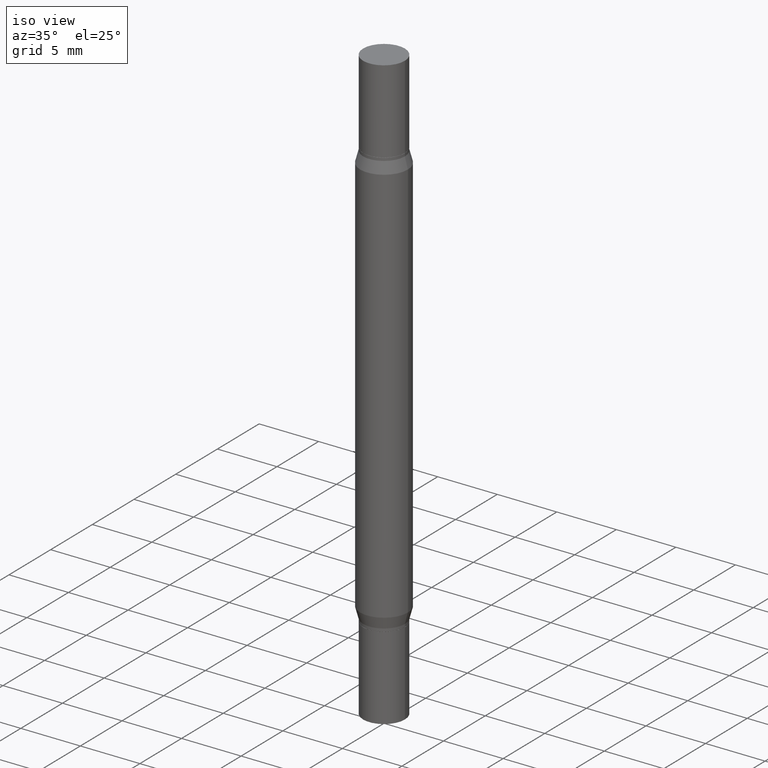
[diagram: clean part render]
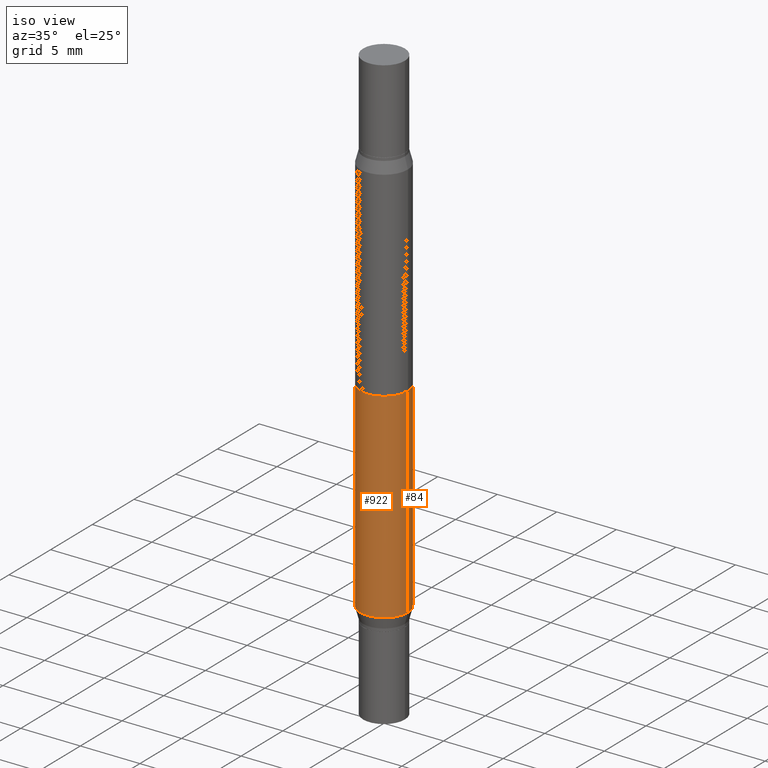
[diagram: same view with one multi-face feature highlighted, each face labeled with its STEP entity id]
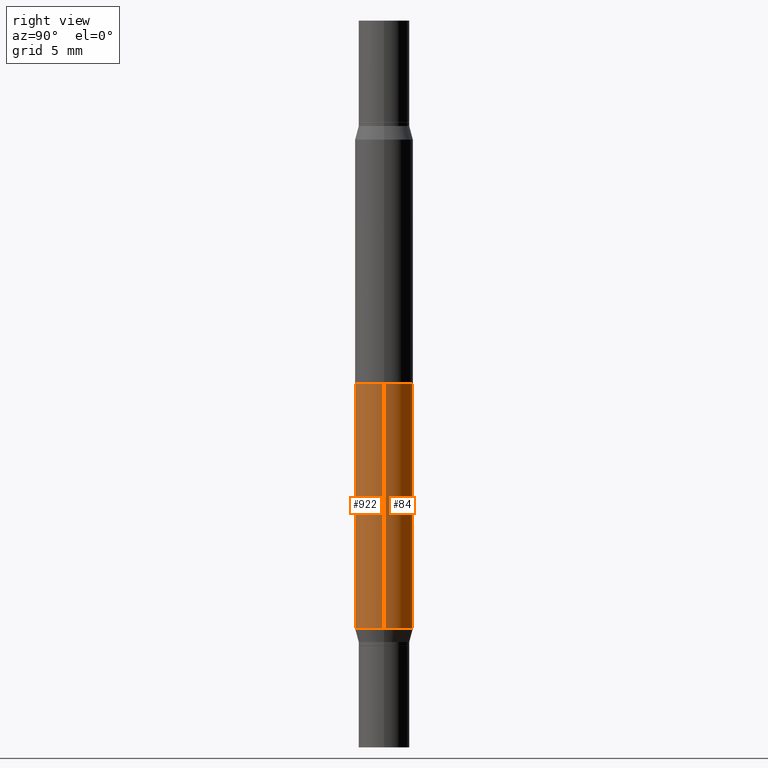
[diagram: same view with one multi-face feature highlighted, each face labeled with its STEP entity id]
A machine part, iso view. The highlighted faces form ONE feature: a constant-radius fillet chain: 2 tangent blend faces with common blend radius 2.0003 mm. The faces share edges in the B-rep.
A second angle (right view) of the same feature is appended — it is thin or edge-on in the first view.
Their STEP definitions:
[1] entity #84 (Cylinder):
#3 = FACE_OUTER_BOUND ( 'NONE', #600, .T. ) ;
#5 = VECTOR ( 'NONE', #874, 39.37007874015748143 ) ;
#10 = CARTESIAN_POINT ( 'NONE',  ( -0.07875000000000001443, -5.850378619788178690E-16, -0.3223607004545533949 ) ) ;
#22 = ORIENTED_EDGE ( 'NONE', *, *, #545, .F. ) ;
#84 = ADVANCED_FACE ( 'NONE', ( #3 ), #746, .T. ) ;
#119 = EDGE_CURVE ( 'NONE', #455, #907, #237, .T. ) ;
#177 = VERTEX_POINT ( 'NONE', #821 ) ;
#237 = LINE ( 'NONE', #909, #5 ) ;
#239 = CARTESIAN_POINT ( 'NONE',  ( -0.07875000000000001443, -6.333035455147343525E-15, -1.968499999999999694 ) ) ;
#252 = DIRECTION ( 'NONE',  ( -2.445468806185136597E-29, 3.491481338843145583E-15, 1.000000000000000000 ) ) ;
#320 = DIRECTION ( 'NONE',  ( 1.000000000000000000, -6.982962677686261189E-15, 0.000000000000000000 ) ) ;
#326 = CARTESIAN_POINT ( 'NONE',  ( 0.07875000000000001443, -1.675210390171119696E-15, -0.3223607004545533949 ) ) ;
#330 = AXIS2_PLACEMENT_3D ( 'NONE', #558, #252, #320 ) ;
#398 = EDGE_CURVE ( 'NONE', #717, #177, #906, .T. ) ;
#431 = AXIS2_PLACEMENT_3D ( 'NONE', #975, #966, #584 ) ;
#455 = VERTEX_POINT ( 'NONE', #326 ) ;
#494 = AXIS2_PLACEMENT_3D ( 'NONE', #972, #900, #799 ) ;
#514 = DIRECTION ( 'NONE',  ( -2.445468806185136877E-29, -3.491805094961123683E-15, -1.000000000000000000 ) ) ;
#545 = EDGE_CURVE ( 'NONE', #455, #717, #706, .T. ) ;
#558 = CARTESIAN_POINT ( 'NONE',  ( 4.025582307673839975E-29, -5.747464645499252384E-15, -1.646139299545446466 ) ) ;
#584 = DIRECTION ( 'NONE',  ( 1.000000000000000000, -6.982962677686273810E-15, 0.000000000000000000 ) ) ;
#600 = EDGE_LOOP ( 'NONE', ( #870, #22, #618, #915 ) ) ;
#618 = ORIENTED_EDGE ( 'NONE', *, *, #119, .T. ) ;
#621 = VECTOR ( 'NONE', #514, 39.37007874015748143 ) ;
#641 = EDGE_CURVE ( 'NONE', #907, #177, #744, .T. ) ;
#706 = CIRCLE ( 'NONE', #494, 0.07875000000000001443 ) ;
#717 = VERTEX_POINT ( 'NONE', #10 ) ;
#744 = CIRCLE ( 'NONE', #330, 0.07875000000000001443 ) ;
#746 = CYLINDRICAL_SURFACE ( 'NONE', #431, 0.07875000000000001443 ) ;
#799 = DIRECTION ( 'NONE',  ( 1.000000000000000000, -6.982962677686267499E-15, 0.000000000000000000 ) ) ;
#821 = CARTESIAN_POINT ( 'NONE',  ( -0.07875000000000001443, -2.896226290431857964E-15, -1.646139299545446466 ) ) ;
#870 = ORIENTED_EDGE ( 'NONE', *, *, #398, .F. ) ;
#874 = DIRECTION ( 'NONE',  ( -2.445468806185136877E-29, -3.491805094961123683E-15, -1.000000000000000000 ) ) ;
#900 = DIRECTION ( 'NONE',  ( 2.445468806185136597E-29, 3.491805094961124077E-15, 1.000000000000000000 ) ) ;
#906 = LINE ( 'NONE', #239, #621 ) ;
#907 = VERTEX_POINT ( 'NONE', #908 ) ;
#908 = CARTESIAN_POINT ( 'NONE',  ( 0.07875000000000001443, -6.297372956367045729E-15, -1.646139299545446466 ) ) ;
#909 = CARTESIAN_POINT ( 'NONE',  ( 0.07875000000000001443, -7.423207983339645550E-15, -1.968499999999999694 ) ) ;
#915 = ORIENTED_EDGE ( 'NONE', *, *, #641, .T. ) ;
#966 = DIRECTION ( 'NONE',  ( -2.445468806185136597E-29, -3.491805094961124077E-15, -1.000000000000000000 ) ) ;
#972 = CARTESIAN_POINT ( 'NONE',  ( 4.025582307673839975E-29, -1.125302079303325561E-15, -0.3223607004545533949 ) ) ;
#975 = CARTESIAN_POINT ( 'NONE',  ( 0.000000000000000000, -6.873299672471851415E-15, -1.968499999999999694 ) ) ;
[2] entity #922 (Cylinder):
#5 = VECTOR ( 'NONE', #874, 39.37007874015748143 ) ;
#10 = CARTESIAN_POINT ( 'NONE',  ( -0.07875000000000001443, -5.850378619788178690E-16, -0.3223607004545533949 ) ) ;
#82 = ORIENTED_EDGE ( 'NONE', *, *, #382, .F. ) ;
#119 = EDGE_CURVE ( 'NONE', #455, #907, #237, .T. ) ;
#137 = DIRECTION ( 'NONE',  ( 1.000000000000000000, -6.982962677686261189E-15, 0.000000000000000000 ) ) ;
#140 = AXIS2_PLACEMENT_3D ( 'NONE', #884, #374, #137 ) ;
#177 = VERTEX_POINT ( 'NONE', #821 ) ;
#219 = ORIENTED_EDGE ( 'NONE', *, *, #885, .T. ) ;
#237 = LINE ( 'NONE', #909, #5 ) ;
#239 = CARTESIAN_POINT ( 'NONE',  ( -0.07875000000000001443, -6.333035455147343525E-15, -1.968499999999999694 ) ) ;
#304 = CARTESIAN_POINT ( 'NONE',  ( 4.025582307673839975E-29, -1.125302079303325561E-15, -0.3223607004545533949 ) ) ;
#326 = CARTESIAN_POINT ( 'NONE',  ( 0.07875000000000001443, -1.675210390171119696E-15, -0.3223607004545533949 ) ) ;
#342 = ORIENTED_EDGE ( 'NONE', *, *, #119, .F. ) ;
#352 = CARTESIAN_POINT ( 'NONE',  ( 0.000000000000000000, -6.873299672471851415E-15, -1.968499999999999694 ) ) ;
#374 = DIRECTION ( 'NONE',  ( -2.445468806185136597E-29, 3.491481338843145583E-15, 1.000000000000000000 ) ) ;
#382 = EDGE_CURVE ( 'NONE', #717, #455, #505, .T. ) ;
#398 = EDGE_CURVE ( 'NONE', #717, #177, #906, .T. ) ;
#428 = FACE_OUTER_BOUND ( 'NONE', #738, .T. ) ;
#434 = DIRECTION ( 'NONE',  ( 1.000000000000000000, -6.982962677686267499E-15, 0.000000000000000000 ) ) ;
#455 = VERTEX_POINT ( 'NONE', #326 ) ;
#505 = CIRCLE ( 'NONE', #817, 0.07875000000000001443 ) ;
#514 = DIRECTION ( 'NONE',  ( -2.445468806185136877E-29, -3.491805094961123683E-15, -1.000000000000000000 ) ) ;
#527 = DIRECTION ( 'NONE',  ( 1.000000000000000000, -6.982962677686273810E-15, 0.000000000000000000 ) ) ;
#562 = ORIENTED_EDGE ( 'NONE', *, *, #398, .T. ) ;
#590 = DIRECTION ( 'NONE',  ( 2.445468806185136597E-29, 3.491805094961124077E-15, 1.000000000000000000 ) ) ;
#621 = VECTOR ( 'NONE', #514, 39.37007874015748143 ) ;
#652 = DIRECTION ( 'NONE',  ( -2.445468806185136597E-29, -3.491805094961124077E-15, -1.000000000000000000 ) ) ;
#664 = AXIS2_PLACEMENT_3D ( 'NONE', #352, #652, #527 ) ;
#717 = VERTEX_POINT ( 'NONE', #10 ) ;
#730 = CYLINDRICAL_SURFACE ( 'NONE', #664, 0.07875000000000001443 ) ;
#738 = EDGE_LOOP ( 'NONE', ( #82, #562, #219, #342 ) ) ;
#817 = AXIS2_PLACEMENT_3D ( 'NONE', #304, #590, #434 ) ;
#821 = CARTESIAN_POINT ( 'NONE',  ( -0.07875000000000001443, -2.896226290431857964E-15, -1.646139299545446466 ) ) ;
#848 = CIRCLE ( 'NONE', #140, 0.07875000000000001443 ) ;
#874 = DIRECTION ( 'NONE',  ( -2.445468806185136877E-29, -3.491805094961123683E-15, -1.000000000000000000 ) ) ;
#884 = CARTESIAN_POINT ( 'NONE',  ( 4.025582307673839975E-29, -5.747464645499252384E-15, -1.646139299545446466 ) ) ;
#885 = EDGE_CURVE ( 'NONE', #177, #907, #848, .T. ) ;
#906 = LINE ( 'NONE', #239, #621 ) ;
#907 = VERTEX_POINT ( 'NONE', #908 ) ;
#908 = CARTESIAN_POINT ( 'NONE',  ( 0.07875000000000001443, -6.297372956367045729E-15, -1.646139299545446466 ) ) ;
#909 = CARTESIAN_POINT ( 'NONE',  ( 0.07875000000000001443, -7.423207983339645550E-15, -1.968499999999999694 ) ) ;
#922 = ADVANCED_FACE ( 'NONE', ( #428 ), #730, .T. ) ;